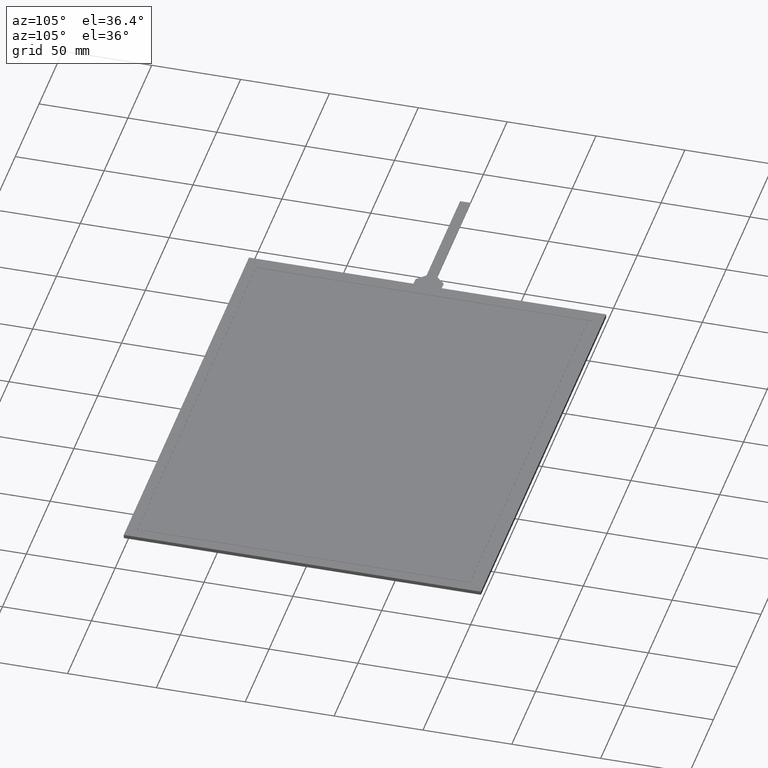
[diagram: clean part render]
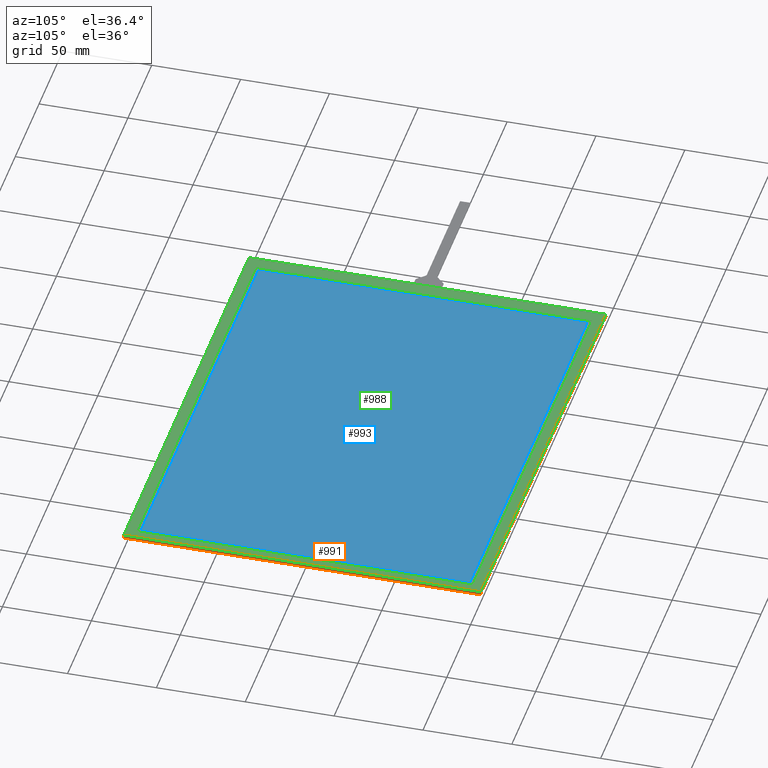
[diagram: same view with three faces highlighted in distinct colors, each labeled with its STEP entity id]
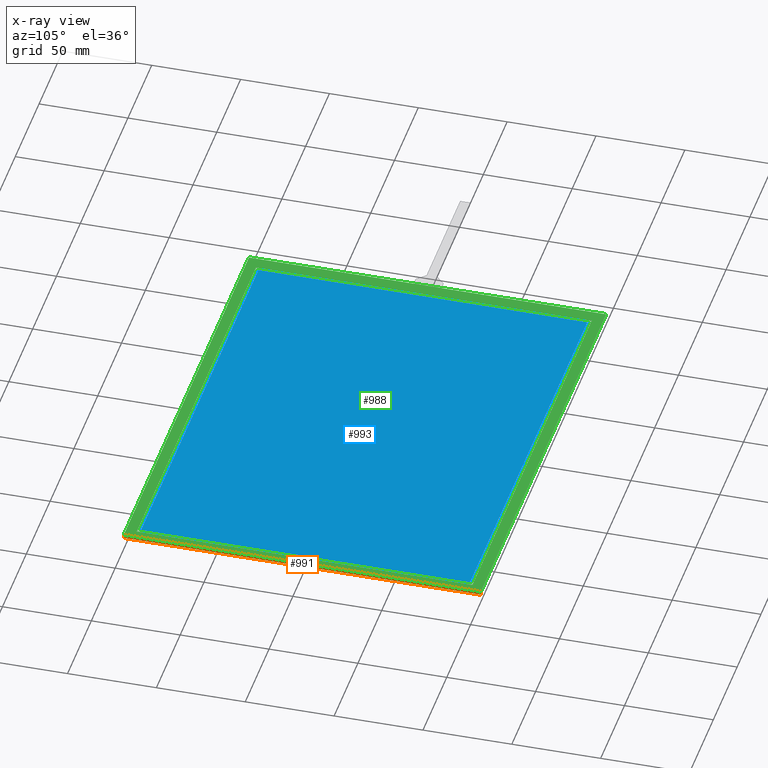
[diagram: x-ray of the same camera — body ghosted, the three highlighted faces saturated]
A machine part, auxiliary view with three faces highlighted in distinct colors.
The next image is the same camera in x-ray (body ghosted, the three faces saturated) — at least one of them is partly hidden behind the body in this view.
Their STEP definitions:

[orange] entity #991 — the highlighted planar face has unit normal (1, 0, 0).
#59=PLANE('',#1074);
#110=FACE_OUTER_BOUND('',#164,.T.);
#164=EDGE_LOOP('',(#922,#923,#924,#925));
#285=LINE('',#1595,#411);
#290=LINE('',#1605,#416);
#291=LINE('',#1608,#417);
#292=LINE('',#1609,#418);
#411=VECTOR('',#1311,10.);
#416=VECTOR('',#1320,10.);
#417=VECTOR('',#1323,10.);
#418=VECTOR('',#1324,10.);
#516=VERTEX_POINT('',#1588);
#519=VERTEX_POINT('',#1593);
#522=VERTEX_POINT('',#1603);
#523=VERTEX_POINT('',#1607);
#653=EDGE_CURVE('',#519,#516,#285,.T.);
#658=EDGE_CURVE('',#519,#522,#290,.T.);
#659=EDGE_CURVE('',#523,#522,#291,.T.);
#660=EDGE_CURVE('',#516,#523,#292,.T.);
#922=ORIENTED_EDGE('',*,*,#653,.F.);
#923=ORIENTED_EDGE('',*,*,#658,.T.);
#924=ORIENTED_EDGE('',*,*,#659,.F.);
#925=ORIENTED_EDGE('',*,*,#660,.F.);
#991=ADVANCED_FACE('',(#110),#59,.T.);
#1074=AXIS2_PLACEMENT_3D('',#1606,#1321,#1322);
#1311=DIRECTION('',(-8.83759621592164E-17,1.,0.));
#1320=DIRECTION('',(0.,0.,-1.));
#1321=DIRECTION('center_axis',(1.,8.83759621592164E-17,0.));
#1322=DIRECTION('ref_axis',(8.83759621592164E-17,-1.,0.));
#1323=DIRECTION('',(8.83759621592164E-17,-1.,0.));
#1324=DIRECTION('',(0.,0.,-1.));
#1588=CARTESIAN_POINT('',(130.,100.5,0.));
#1593=CARTESIAN_POINT('',(130.,-100.5,0.));
#1595=CARTESIAN_POINT('',(130.,-100.5,0.));
#1603=CARTESIAN_POINT('',(130.,-100.5,-2.1));
#1605=CARTESIAN_POINT('',(130.,-100.5,0.));
#1606=CARTESIAN_POINT('Origin',(130.,100.5,0.));
#1607=CARTESIAN_POINT('',(130.,100.5,-2.1));
#1608=CARTESIAN_POINT('',(130.,-100.5,-2.1));
#1609=CARTESIAN_POINT('',(130.,100.5,0.));

[blue] entity #993 — the highlighted planar face has unit normal (0, 0, 1).
#61=PLANE('',#1076);
#112=FACE_OUTER_BOUND('',#166,.T.);
#166=EDGE_LOOP('',(#930,#931,#932,#933));
#258=LINE('',#1541,#384);
#262=LINE('',#1549,#388);
#265=LINE('',#1555,#391);
#268=LINE('',#1560,#394);
#384=VECTOR('',#1266,10.);
#388=VECTOR('',#1272,10.);
#391=VECTOR('',#1277,10.);
#394=VECTOR('',#1282,10.);
#500=VERTEX_POINT('',#1539);
#501=VERTEX_POINT('',#1540);
#504=VERTEX_POINT('',#1548);
#506=VERTEX_POINT('',#1554);
#626=EDGE_CURVE('',#500,#501,#258,.T.);
#630=EDGE_CURVE('',#504,#500,#262,.T.);
#633=EDGE_CURVE('',#506,#504,#265,.T.);
#636=EDGE_CURVE('',#501,#506,#268,.T.);
#930=ORIENTED_EDGE('',*,*,#626,.T.);
#931=ORIENTED_EDGE('',*,*,#636,.T.);
#932=ORIENTED_EDGE('',*,*,#633,.T.);
#933=ORIENTED_EDGE('',*,*,#630,.T.);
#993=ADVANCED_FACE('',(#112),#61,.T.);
#1076=AXIS2_PLACEMENT_3D('',#1612,#1328,#1329);
#1266=DIRECTION('',(1.,0.,0.));
#1272=DIRECTION('',(0.,-1.,0.));
#1277=DIRECTION('',(-1.,0.,0.));
#1282=DIRECTION('',(0.,1.,0.));
#1328=DIRECTION('center_axis',(0.,0.,1.));
#1329=DIRECTION('ref_axis',(1.,0.,0.));
#1539=CARTESIAN_POINT('',(-123.25,-92.5,0.));
#1540=CARTESIAN_POINT('',(123.25,-92.5,0.));
#1541=CARTESIAN_POINT('',(-62.375,-92.5,0.));
#1548=CARTESIAN_POINT('',(-123.25,92.5,0.));
#1549=CARTESIAN_POINT('',(-123.25,46.25,0.));
#1554=CARTESIAN_POINT('',(123.25,92.5,0.));
#1555=CARTESIAN_POINT('',(60.875,92.5,0.));
#1560=CARTESIAN_POINT('',(123.25,-46.25,0.));
#1612=CARTESIAN_POINT('Origin',(-1.50000000000002,8.88178419700125E-15,
0.));

[green] entity #988 — the highlighted planar face has unit normal (0, 0, 1).
#16=FACE_BOUND('',#160,.T.);
#56=PLANE('',#1071);
#107=FACE_OUTER_BOUND('',#159,.T.);
#159=EDGE_LOOP('',(#902,#903,#904,#905));
#160=EDGE_LOOP('',(#906,#907,#908,#909));
#270=LINE('',#1565,#396);
#274=LINE('',#1573,#400);
#277=LINE('',#1579,#403);
#280=LINE('',#1584,#406);
#282=LINE('',#1590,#408);
#283=LINE('',#1592,#409);
#284=LINE('',#1594,#410);
#285=LINE('',#1595,#411);
#396=VECTOR('',#1286,10.);
#400=VECTOR('',#1292,10.);
#403=VECTOR('',#1297,10.);
#406=VECTOR('',#1302,10.);
#408=VECTOR('',#1308,10.);
#409=VECTOR('',#1309,10.);
#410=VECTOR('',#1310,10.);
#411=VECTOR('',#1311,10.);
#508=VERTEX_POINT('',#1563);
#509=VERTEX_POINT('',#1564);
#512=VERTEX_POINT('',#1572);
#514=VERTEX_POINT('',#1578);
#516=VERTEX_POINT('',#1588);
#517=VERTEX_POINT('',#1589);
#518=VERTEX_POINT('',#1591);
#519=VERTEX_POINT('',#1593);
#638=EDGE_CURVE('',#508,#509,#270,.T.);
#642=EDGE_CURVE('',#512,#508,#274,.T.);
#645=EDGE_CURVE('',#514,#512,#277,.T.);
#648=EDGE_CURVE('',#509,#514,#280,.T.);
#650=EDGE_CURVE('',#516,#517,#282,.T.);
#651=EDGE_CURVE('',#517,#518,#283,.T.);
#652=EDGE_CURVE('',#518,#519,#284,.T.);
#653=EDGE_CURVE('',#519,#516,#285,.T.);
#902=ORIENTED_EDGE('',*,*,#650,.T.);
#903=ORIENTED_EDGE('',*,*,#651,.T.);
#904=ORIENTED_EDGE('',*,*,#652,.T.);
#905=ORIENTED_EDGE('',*,*,#653,.T.);
#906=ORIENTED_EDGE('',*,*,#638,.T.);
#907=ORIENTED_EDGE('',*,*,#648,.T.);
#908=ORIENTED_EDGE('',*,*,#645,.T.);
#909=ORIENTED_EDGE('',*,*,#642,.T.);
#988=ADVANCED_FACE('',(#107,#16),#56,.T.);
#1071=AXIS2_PLACEMENT_3D('',#1587,#1306,#1307);
#1286=DIRECTION('',(-1.87974268719603E-16,1.,0.));
#1292=DIRECTION('',(-1.,-1.41824897357305E-16,0.));
#1297=DIRECTION('',(1.87974268719603E-16,-1.,0.));
#1302=DIRECTION('',(1.,0.,0.));
#1306=DIRECTION('center_axis',(0.,0.,1.));
#1307=DIRECTION('ref_axis',(1.,0.,0.));
#1308=DIRECTION('',(-1.,0.,0.));
#1309=DIRECTION('',(1.76751924318433E-16,-1.,0.));
#1310=DIRECTION('',(1.,6.75420851482985E-17,0.));
#1311=DIRECTION('',(-8.83759621592164E-17,1.,0.));
#1563=CARTESIAN_POINT('',(-125.25,-94.5,0.));
#1564=CARTESIAN_POINT('',(-125.25,94.5,0.));
#1565=CARTESIAN_POINT('',(-125.25,-47.25,0.));
#1572=CARTESIAN_POINT('',(125.25,-94.5,0.));
#1573=CARTESIAN_POINT('',(61.875,-94.5,0.));
#1578=CARTESIAN_POINT('',(125.25,94.5,0.));
#1579=CARTESIAN_POINT('',(125.25,47.25,0.));
#1584=CARTESIAN_POINT('',(-63.375,94.5,0.));
#1587=CARTESIAN_POINT('Origin',(-1.50000000000002,8.88178419700125E-15,
0.));
#1588=CARTESIAN_POINT('',(130.,100.5,0.));
#1589=CARTESIAN_POINT('',(-133.,100.5,0.));
#1590=CARTESIAN_POINT('',(130.,100.5,0.));
#1591=CARTESIAN_POINT('',(-133.,-100.5,0.));
#1592=CARTESIAN_POINT('',(-133.,100.5,0.));
#1593=CARTESIAN_POINT('',(130.,-100.5,0.));
#1594=CARTESIAN_POINT('',(-133.,-100.5,0.));
#1595=CARTESIAN_POINT('',(130.,-100.5,0.));